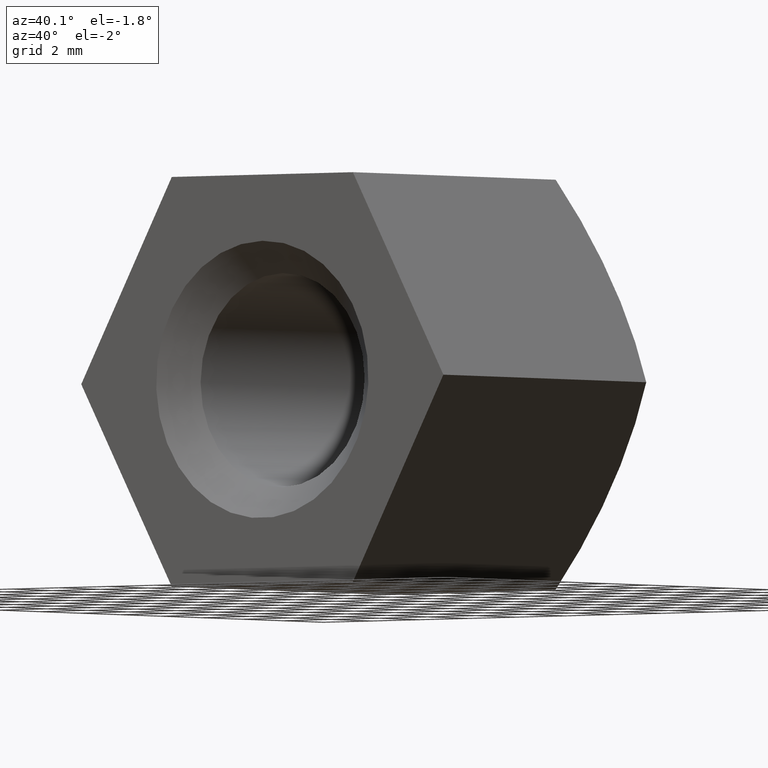
[diagram: clean part render]
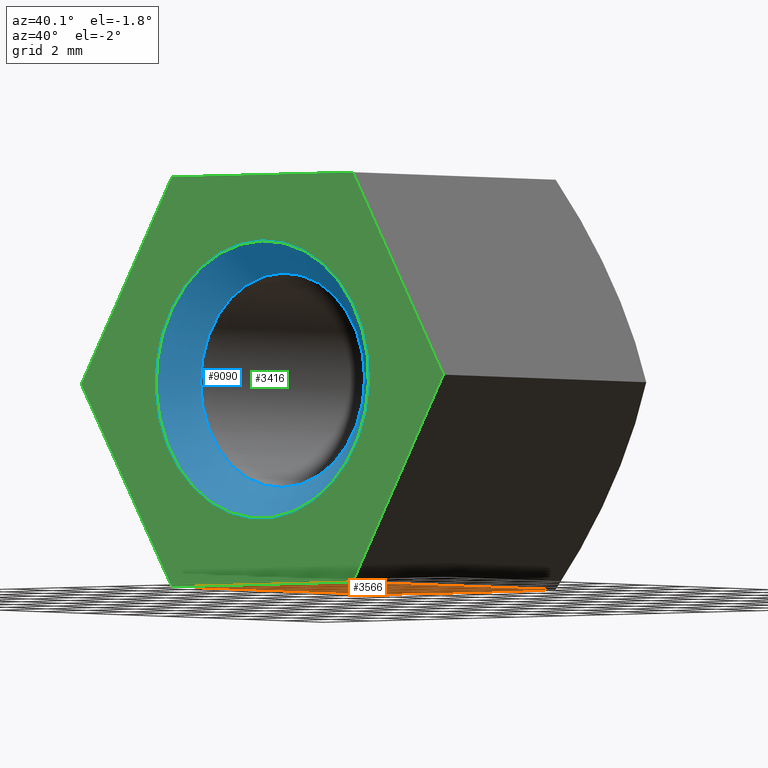
[diagram: same view with three faces highlighted in distinct colors, each labeled with its STEP entity id]
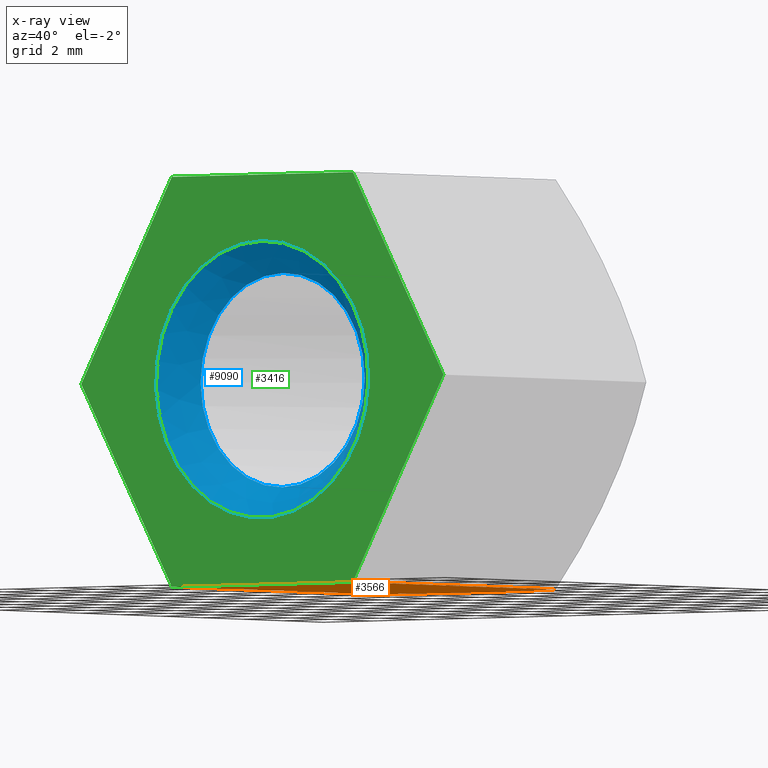
[diagram: x-ray of the same camera — body ghosted, the three highlighted faces saturated]
A machine part, auxiliary view with three faces highlighted in distinct colors.
The next image is the same camera in x-ray (body ghosted, the three faces saturated) — at least one of them is partly hidden behind the body in this view.
Their STEP definitions:

[orange] entity #3566 — the highlighted planar face has unit normal (-0, 0, 1).
#349 = DIRECTION ( 'NONE',  ( -0.000000000000000000, -1.000000000000000000, -0.000000000000000000 ) ) ;
#539 = ORIENTED_EDGE ( 'NONE', *, *, #8937, .T. ) ;
#1368 = CARTESIAN_POINT ( 'NONE',  ( 3.752776749732564809, 12.00000000000000000, -6.500000000000000000 ) ) ;
#1526 = VECTOR ( 'NONE', #349, 1000.000000000000000 ) ;
#1637 = CARTESIAN_POINT ( 'NONE',  ( 7.511572993685803045E-16, -3.000000000000000888, -6.500000000000000888 ) ) ;
#1876 = CARTESIAN_POINT ( 'NONE',  ( 3.752776749732569250, 9.987173159185438465, -6.500000000000001776 ) ) ;
#2494 = CARTESIAN_POINT ( 'NONE',  ( -3.752776749732566142, 12.00000000000000000, -6.500000000000000888 ) ) ;
#2633 = DIRECTION ( 'NONE',  ( -1.000000000000000000, 0.000000000000000000, -1.155626614413200317E-16 ) ) ;
#2797 = DIRECTION ( 'NONE',  ( 1.000000000000000000, 0.000000000000000000, 1.283221309515881126E-16 ) ) ;
#2967 = CARTESIAN_POINT ( 'NONE',  ( 3.752776749732564809, 0.000000000000000000, -6.500000000000000000 ) ) ;
#3286 = ORIENTED_EDGE ( 'NONE', *, *, #8718, .T. ) ;
#3420 = EDGE_CURVE ( 'NONE', #12583, #3472, #9901, .T. ) ;
#3461 = CARTESIAN_POINT ( 'NONE',  ( 3.752776749732564809, 0.000000000000000000, -6.500000000000000000 ) ) ;
#3472 = VERTEX_POINT ( 'NONE', #14089 ) ;
#3566 = ADVANCED_FACE ( 'NONE', ( #4824 ), #10725, .F. ) ;
#3868 = LINE ( 'NONE', #1368, #1526 ) ;
#4070 = LINE ( 'NONE', #2967, #10423 ) ;
#4758 = DIRECTION ( 'NONE',  ( -0.000000000000000000, -1.000000000000000000, -0.000000000000000000 ) ) ;
#4793 = AXIS2_PLACEMENT_3D ( 'NONE', #6141, #4952, #8388 ) ;
#4824 = FACE_OUTER_BOUND ( 'NONE', #5792, .T. ) ;
#4952 = DIRECTION ( 'NONE',  ( -1.155626614413200317E-16, 0.000000000000000000, 1.000000000000000000 ) ) ;
#5342 = CIRCLE ( 'NONE', #11009, 13.51850583459577670 ) ;
#5792 = EDGE_LOOP ( 'NONE', ( #14766, #3286, #13207, #539 ) ) ;
#6141 = CARTESIAN_POINT ( 'NONE',  ( 3.752776749732564809, 12.00000000000000000, -6.500000000000000000 ) ) ;
#7883 = VECTOR ( 'NONE', #4758, 1000.000000000000000 ) ;
#8388 = DIRECTION ( 'NONE',  ( 1.000000000000000000, 0.000000000000000000, 1.155626614413200317E-16 ) ) ;
#8591 = DIRECTION ( 'NONE',  ( 1.155626614413200317E-16, -0.000000000000000000, -1.000000000000000000 ) ) ;
#8718 = EDGE_CURVE ( 'NONE', #12583, #14686, #5342, .T. ) ;
#8937 = EDGE_CURVE ( 'NONE', #13228, #3472, #4070, .T. ) ;
#9901 = LINE ( 'NONE', #2494, #7883 ) ;
#10423 = VECTOR ( 'NONE', #2633, 1000.000000000000000 ) ;
#10725 = PLANE ( 'NONE',  #4793 ) ;
#10728 = CARTESIAN_POINT ( 'NONE',  ( -3.752776749732564809, 9.987173159185438465, -6.500000000000004441 ) ) ;
#11009 = AXIS2_PLACEMENT_3D ( 'NONE', #1637, #8591, #2797 ) ;
#11568 = EDGE_CURVE ( 'NONE', #14686, #13228, #3868, .T. ) ;
#12583 = VERTEX_POINT ( 'NONE', #10728 ) ;
#13207 = ORIENTED_EDGE ( 'NONE', *, *, #11568, .T. ) ;
#13228 = VERTEX_POINT ( 'NONE', #3461 ) ;
#14089 = CARTESIAN_POINT ( 'NONE',  ( -3.752776749732566142, 0.000000000000000000, -6.500000000000000888 ) ) ;
#14686 = VERTEX_POINT ( 'NONE', #1876 ) ;
#14766 = ORIENTED_EDGE ( 'NONE', *, *, #3420, .F. ) ;

[blue] entity #9090 — the highlighted conical surface has half-angle 45 deg.
#991 = DIRECTION ( 'NONE',  ( 0.000000000000000000, 0.000000000000000000, 1.000000000000000000 ) ) ;
#1220 = AXIS2_PLACEMENT_3D ( 'NONE', #6961, #3487, #9312 ) ;
#1373 = CARTESIAN_POINT ( 'NONE',  ( 0.000000000000000000, 1.000000000000001776, 3.399999999999997247 ) ) ;
#2466 = FACE_OUTER_BOUND ( 'NONE', #8869, .T. ) ;
#2705 = AXIS2_PLACEMENT_3D ( 'NONE', #8983, #13552, #4372 ) ;
#3313 = DIRECTION ( 'NONE',  ( 0.000000000000000000, -1.000000000000000000, 0.000000000000000000 ) ) ;
#3487 = DIRECTION ( 'NONE',  ( 0.000000000000000000, 1.000000000000000000, 0.000000000000000000 ) ) ;
#3731 = CARTESIAN_POINT ( 'NONE',  ( 0.000000000000000000, 0.000000000000000000, 4.400000000000004796 ) ) ;
#3828 = EDGE_CURVE ( 'NONE', #13569, #13569, #7154, .T. ) ;
#4372 = DIRECTION ( 'NONE',  ( 0.000000000000000000, 0.000000000000000000, -1.000000000000000000 ) ) ;
#4809 = CONICAL_SURFACE ( 'NONE', #2705, 3.399999999999997247, 0.7853981633974510546 ) ;
#5266 = EDGE_LOOP ( 'NONE', ( #11543 ) ) ;
#6961 = CARTESIAN_POINT ( 'NONE',  ( 0.000000000000000000, 0.000000000000000000, 0.000000000000000000 ) ) ;
#7154 = CIRCLE ( 'NONE', #1220, 4.400000000000004796 ) ;
#7919 = AXIS2_PLACEMENT_3D ( 'NONE', #12135, #3313, #991 ) ;
#8869 = EDGE_LOOP ( 'NONE', ( #13923 ) ) ;
#8983 = CARTESIAN_POINT ( 'NONE',  ( 0.000000000000000000, 1.000000000000001776, 0.000000000000000000 ) ) ;
#9090 = ADVANCED_FACE ( 'NONE', ( #2466, #12371 ), #4809, .F. ) ;
#9312 = DIRECTION ( 'NONE',  ( 0.000000000000000000, 0.000000000000000000, 1.000000000000000000 ) ) ;
#11543 = ORIENTED_EDGE ( 'NONE', *, *, #13097, .F. ) ;
#12135 = CARTESIAN_POINT ( 'NONE',  ( 0.000000000000000000, 1.000000000000001776, 0.000000000000000000 ) ) ;
#12371 = FACE_BOUND ( 'NONE', #5266, .T. ) ;
#12494 = CIRCLE ( 'NONE', #7919, 3.399999999999997247 ) ;
#13097 = EDGE_CURVE ( 'NONE', #13368, #13368, #12494, .T. ) ;
#13368 = VERTEX_POINT ( 'NONE', #1373 ) ;
#13552 = DIRECTION ( 'NONE',  ( 0.000000000000000000, -1.000000000000000000, 0.000000000000000000 ) ) ;
#13569 = VERTEX_POINT ( 'NONE', #3731 ) ;
#13923 = ORIENTED_EDGE ( 'NONE', *, *, #3828, .F. ) ;

[green] entity #3416 — the highlighted planar face has unit normal (0, 1, 0).
#151 = CARTESIAN_POINT ( 'NONE',  ( -3.752776749732565698, 0.000000000000000000, 6.499999999999997335 ) ) ;
#495 = EDGE_CURVE ( 'NONE', #14580, #13228, #7191, .T. ) ;
#937 = EDGE_LOOP ( 'NONE', ( #14642 ) ) ;
#1012 = VECTOR ( 'NONE', #12164, 1000.000000000000227 ) ;
#1220 = AXIS2_PLACEMENT_3D ( 'NONE', #6961, #3487, #9312 ) ;
#1242 = CARTESIAN_POINT ( 'NONE',  ( 7.505553499465134948, 0.000000000000000000, -1.452201890551049581E-15 ) ) ;
#2013 = DIRECTION ( 'NONE',  ( -0.5000000000000001110, 0.000000000000000000, 0.8660254037844385966 ) ) ;
#2633 = DIRECTION ( 'NONE',  ( -1.000000000000000000, 0.000000000000000000, -1.155626614413200317E-16 ) ) ;
#2695 = CARTESIAN_POINT ( 'NONE',  ( 3.752776749732568362, 0.000000000000000000, 6.499999999999995559 ) ) ;
#2697 = CARTESIAN_POINT ( 'NONE',  ( 7.505553499465134948, 0.000000000000000000, -1.452201890551049581E-15 ) ) ;
#2946 = CARTESIAN_POINT ( 'NONE',  ( -7.505553499465134060, 0.000000000000000000, -8.190246208612452051E-16 ) ) ;
#2967 = CARTESIAN_POINT ( 'NONE',  ( 3.752776749732564809, 0.000000000000000000, -6.500000000000000000 ) ) ;
#3032 = CARTESIAN_POINT ( 'NONE',  ( -3.752776749732565698, 0.000000000000000000, 6.499999999999997335 ) ) ;
#3268 = ORIENTED_EDGE ( 'NONE', *, *, #13966, .F. ) ;
#3416 = ADVANCED_FACE ( 'NONE', ( #14402, #5179 ), #8182, .F. ) ;
#3461 = CARTESIAN_POINT ( 'NONE',  ( 3.752776749732564809, 0.000000000000000000, -6.500000000000000000 ) ) ;
#3472 = VERTEX_POINT ( 'NONE', #14089 ) ;
#3487 = DIRECTION ( 'NONE',  ( 0.000000000000000000, 1.000000000000000000, 0.000000000000000000 ) ) ;
#3577 = DIRECTION ( 'NONE',  ( 1.000000000000000000, 0.000000000000000000, -2.311253228826399154E-16 ) ) ;
#3731 = CARTESIAN_POINT ( 'NONE',  ( 0.000000000000000000, 0.000000000000000000, 4.400000000000004796 ) ) ;
#3828 = EDGE_CURVE ( 'NONE', #13569, #13569, #7154, .T. ) ;
#4070 = LINE ( 'NONE', #2967, #10423 ) ;
#4435 = LINE ( 'NONE', #2946, #1012 ) ;
#4515 = EDGE_CURVE ( 'NONE', #5072, #9926, #4435, .T. ) ;
#5072 = VERTEX_POINT ( 'NONE', #5370 ) ;
#5179 = FACE_OUTER_BOUND ( 'NONE', #12268, .T. ) ;
#5370 = CARTESIAN_POINT ( 'NONE',  ( -7.505553499465134060, 0.000000000000000000, -8.190246208612452051E-16 ) ) ;
#5583 = ORIENTED_EDGE ( 'NONE', *, *, #11276, .F. ) ;
#5608 = ORIENTED_EDGE ( 'NONE', *, *, #495, .F. ) ;
#5616 = VECTOR ( 'NONE', #2013, 1000.000000000000114 ) ;
#6063 = ORIENTED_EDGE ( 'NONE', *, *, #8937, .F. ) ;
#6142 = DIRECTION ( 'NONE',  ( 0.5000000000000001110, 0.000000000000000000, -0.8660254037844385966 ) ) ;
#6961 = CARTESIAN_POINT ( 'NONE',  ( 0.000000000000000000, 0.000000000000000000, 0.000000000000000000 ) ) ;
#7154 = CIRCLE ( 'NONE', #1220, 4.400000000000004796 ) ;
#7191 = LINE ( 'NONE', #1242, #9023 ) ;
#7964 = LINE ( 'NONE', #151, #14659 ) ;
#8128 = DIRECTION ( 'NONE',  ( 0.000000000000000000, -0.000000000000000000, 1.000000000000000000 ) ) ;
#8182 = PLANE ( 'NONE',  #10309 ) ;
#8284 = DIRECTION ( 'NONE',  ( 0.000000000000000000, 1.000000000000000000, 0.000000000000000000 ) ) ;
#8745 = VECTOR ( 'NONE', #6142, 1000.000000000000114 ) ;
#8937 = EDGE_CURVE ( 'NONE', #13228, #3472, #4070, .T. ) ;
#9023 = VECTOR ( 'NONE', #10481, 1000.000000000000114 ) ;
#9312 = DIRECTION ( 'NONE',  ( 0.000000000000000000, 0.000000000000000000, 1.000000000000000000 ) ) ;
#9319 = CARTESIAN_POINT ( 'NONE',  ( 0.000000000000000000, 0.000000000000000000, 0.000000000000000000 ) ) ;
#9926 = VERTEX_POINT ( 'NONE', #3032 ) ;
#10309 = AXIS2_PLACEMENT_3D ( 'NONE', #9319, #8284, #8128 ) ;
#10336 = LINE ( 'NONE', #14585, #5616 ) ;
#10423 = VECTOR ( 'NONE', #2633, 1000.000000000000000 ) ;
#10481 = DIRECTION ( 'NONE',  ( -0.5000000000000004441, 0.000000000000000000, -0.8660254037844383745 ) ) ;
#10565 = LINE ( 'NONE', #2695, #8745 ) ;
#10772 = CARTESIAN_POINT ( 'NONE',  ( 3.752776749732568362, 0.000000000000000000, 6.499999999999995559 ) ) ;
#11276 = EDGE_CURVE ( 'NONE', #12367, #14580, #10565, .T. ) ;
#12164 = DIRECTION ( 'NONE',  ( 0.5000000000000001110, 0.000000000000000000, 0.8660254037844384856 ) ) ;
#12268 = EDGE_LOOP ( 'NONE', ( #5583, #14072, #12525, #3268, #6063, #5608 ) ) ;
#12367 = VERTEX_POINT ( 'NONE', #10772 ) ;
#12525 = ORIENTED_EDGE ( 'NONE', *, *, #4515, .F. ) ;
#13228 = VERTEX_POINT ( 'NONE', #3461 ) ;
#13569 = VERTEX_POINT ( 'NONE', #3731 ) ;
#13966 = EDGE_CURVE ( 'NONE', #3472, #5072, #10336, .T. ) ;
#14072 = ORIENTED_EDGE ( 'NONE', *, *, #14155, .F. ) ;
#14089 = CARTESIAN_POINT ( 'NONE',  ( -3.752776749732566142, 0.000000000000000000, -6.500000000000000888 ) ) ;
#14155 = EDGE_CURVE ( 'NONE', #9926, #12367, #7964, .T. ) ;
#14402 = FACE_BOUND ( 'NONE', #937, .T. ) ;
#14580 = VERTEX_POINT ( 'NONE', #2697 ) ;
#14585 = CARTESIAN_POINT ( 'NONE',  ( -3.752776749732566142, 0.000000000000000000, -6.500000000000000888 ) ) ;
#14642 = ORIENTED_EDGE ( 'NONE', *, *, #3828, .T. ) ;
#14659 = VECTOR ( 'NONE', #3577, 1000.000000000000000 ) ;